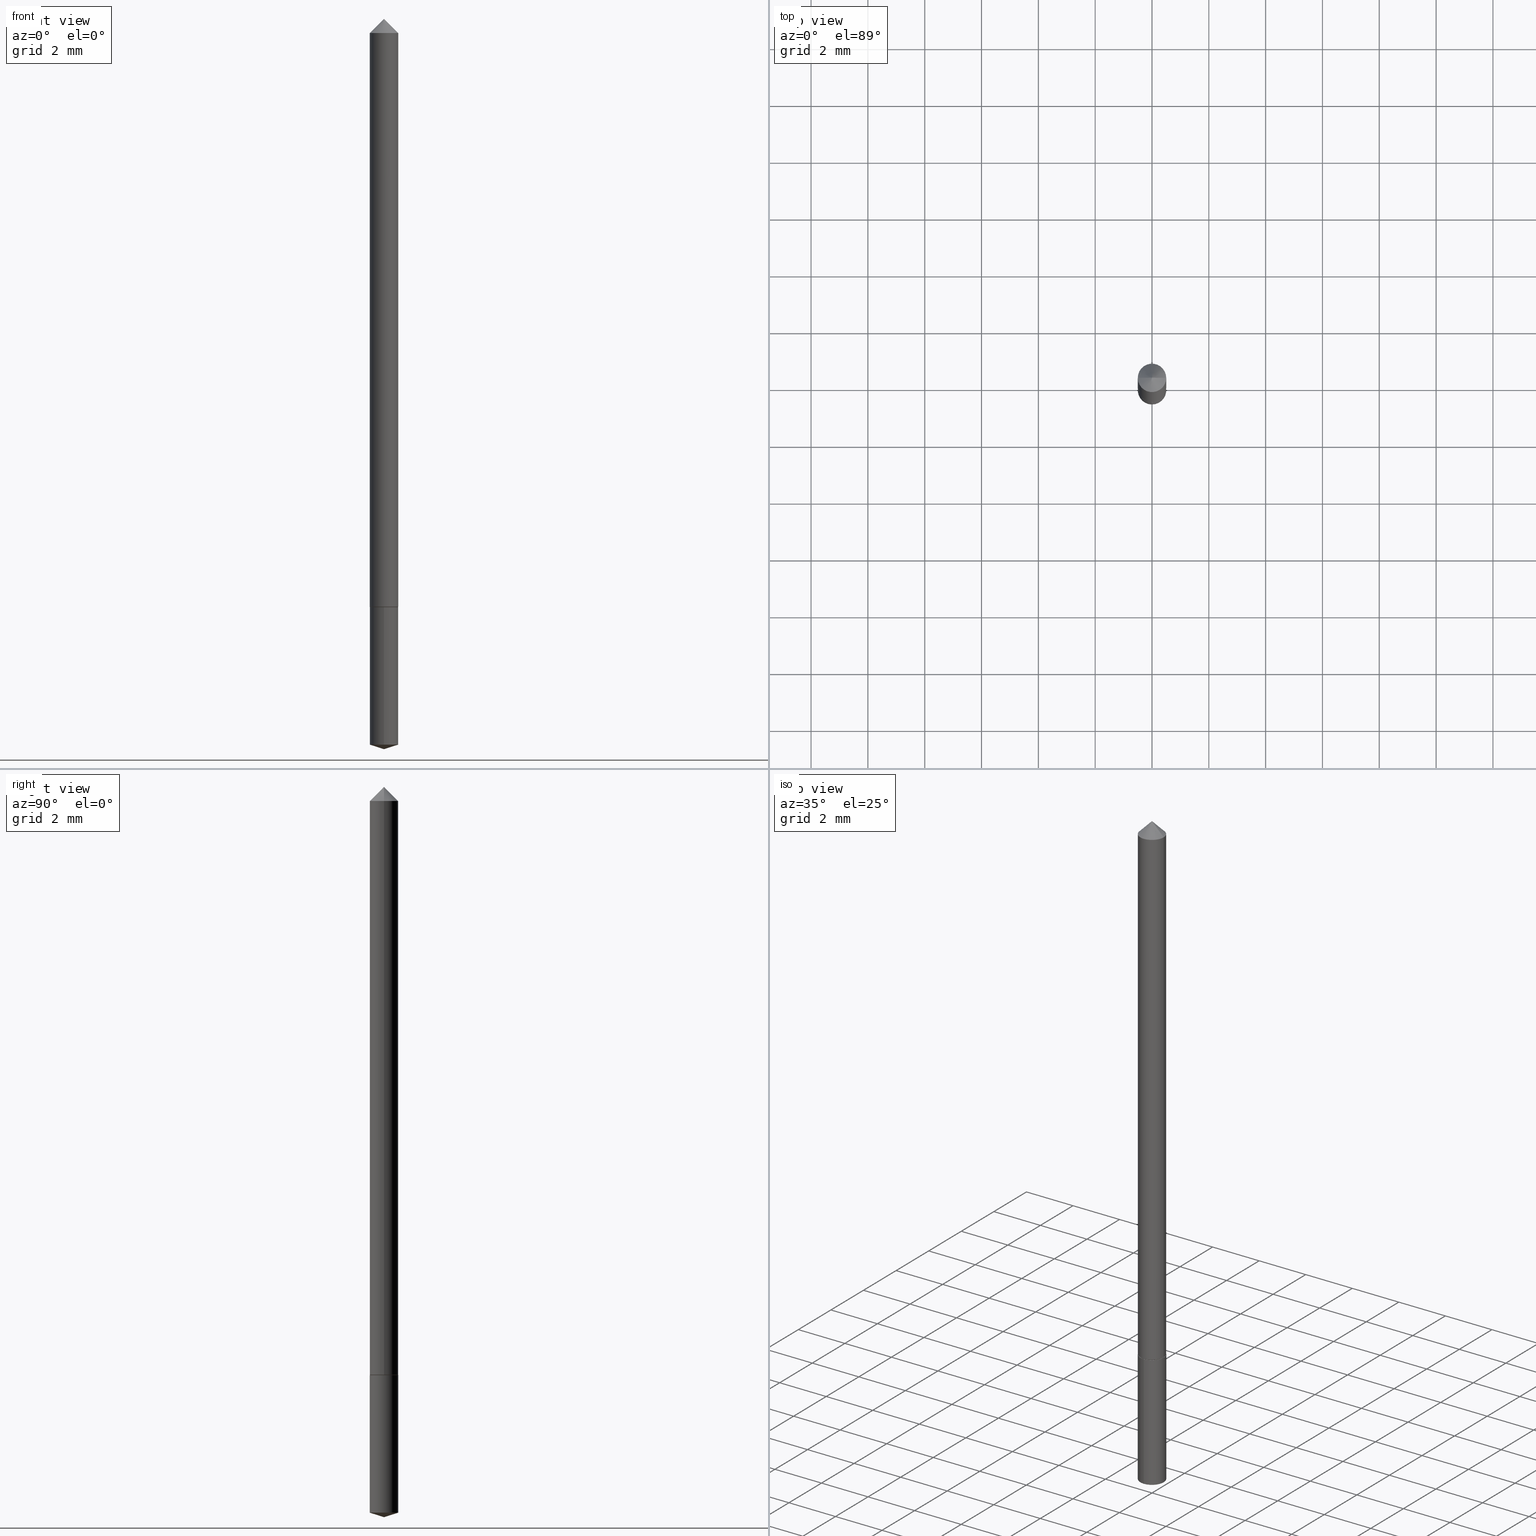
[diagram: canonical four-view strip — front | top / right | iso, engineering-drawing reading convention]
A machine part, canonical four-view strip (front | top / right | iso — engineering-drawing reading convention). The complete STEP part file that produces these views, byte-faithful:
ISO-10303-21;
HEADER;
FILE_DESCRIPTION (( 'STEP AP203' ),
    '1' );
FILE_NAME ('68653.STEP',
    '2024-04-23T13:24:25',
    ( '' ),
    ( '' ),
    'SwSTEP 2.0',
    'SolidWorks 2023',
    '' );
FILE_SCHEMA (( 'CONFIG_CONTROL_DESIGN' ));
ENDSEC;

DATA;
#1 = EDGE_LOOP ( 'NONE', ( #312, #205, #308 ) ) ;
#2 = DIRECTION ( 'NONE',  ( -2.445468806185136597E-29, 3.491481338843145583E-15, 1.000000000000000000 ) ) ;
#3 = EDGE_CURVE ( 'NONE', #20, #193, #161, .T. ) ;
#4 = CARTESIAN_POINT ( 'NONE',  ( 0.000000000000000000, 0.000000000000000000, 0.000000000000000000 ) ) ;
#5 = ADVANCED_FACE ( 'NONE', ( #355 ), #168, .T. ) ;
#6 = EDGE_CURVE ( 'NONE', #90, #110, #181, .T. ) ;
#7 = PRODUCT_DEFINITION_SHAPE ( 'NONE', 'NONE',  #191 ) ;
#8 = VERTEX_POINT ( 'NONE', #210 ) ;
#9 = CARTESIAN_POINT ( 'NONE',  ( 2.021913608953870993E-29, -2.886756770955512686E-15, -0.8268000000000000904 ) ) ;
#10 = APPROVAL_DATE_TIME ( #16, #204 ) ;
#11 = CIRCLE ( 'NONE', #219, 0.01969999999999999876 ) ;
#12 = DIRECTION ( 'NONE',  ( -2.445468806185136597E-29, 3.491481338843145583E-15, 1.000000000000000000 ) ) ;
#13 = PERSON_AND_ORGANIZATION_ROLE ( 'design_supplier' ) ;
#14 = APPROVAL ( #338, 'UNSPECIFIED' ) ;
#15 = LINE ( 'NONE', #128, #31 ) ;
#16 = DATE_AND_TIME ( #159, #269 ) ;
#17 = ORIENTED_EDGE ( 'NONE', *, *, #207, .T. ) ;
#18 = PLANE ( 'NONE',  #155 ) ;
#19 = LENGTH_MEASURE_WITH_UNIT ( LENGTH_MEASURE( 0.02539999999999999897 ), #213 );
#20 = VERTEX_POINT ( 'NONE', #323 ) ;
#21 = EDGE_LOOP ( 'NONE', ( #17, #146, #148, #251 ) ) ;
#22 = EDGE_LOOP ( 'NONE', ( #222, #152, #215, #316 ) ) ;
#23 = AXIS2_PLACEMENT_3D ( 'NONE', #261, #156, #285 ) ;
#24 = ORIENTED_EDGE ( 'NONE', *, *, #359, .T. ) ;
#25 = DIRECTION ( 'NONE',  ( -2.445468806185136597E-29, 3.491481338843145583E-15, 1.000000000000000000 ) ) ;
#26 = ADVANCED_FACE ( 'NONE', ( #125 ), #234, .F. ) ;
#27 = CARTESIAN_POINT ( 'NONE',  ( -0.01970000000000009938, -2.745034111341350691E-15, -0.8263000000000000345 ) ) ;
#28 = ORIENTED_EDGE ( 'NONE', *, *, #176, .T. ) ;
#29 = EDGE_CURVE ( 'NONE', #101, #8, #68, .T. ) ;
#30 = DIRECTION ( 'NONE',  ( 2.445468806185136597E-29, -3.491481338843145583E-15, -1.000000000000000000 ) ) ;
#31 = VECTOR ( 'NONE', #136, 39.37007874015748854 ) ;
#32 = ORIENTED_EDGE ( 'NONE', *, *, #226, .F. ) ;
#33 = DIRECTION ( 'NONE',  ( -2.445468806185136597E-29, 3.491481338843145583E-15, 1.000000000000000000 ) ) ;
#34 = APPROVAL_ROLE ( '' ) ;
#35 = ORIENTED_EDGE ( 'NONE', *, *, #79, .T. ) ;
#36 = CC_DESIGN_DATE_AND_TIME_ASSIGNMENT ( #303, #212, ( #114 ) ) ;
#37 = CIRCLE ( 'NONE', #243, 0.01920000000000009893 ) ;
#38 = LOCAL_TIME ( 9, 24, 25.00000000000000000, #362 ) ;
#39 = DIRECTION ( 'NONE',  ( -2.445468806185136597E-29, 3.491481338843145583E-15, 1.000000000000000000 ) ) ;
#40 = DIRECTION ( 'NONE',  ( -2.445361441338074995E-29, 3.491635091414965380E-15, 1.000000000000000000 ) ) ;
#41 = APPROVAL_STATUS ( 'not_yet_approved' ) ;
#42 = CARTESIAN_POINT ( 'NONE',  ( 2.021913608953870993E-29, -2.886756770955512686E-15, -0.8268000000000000904 ) ) ;
#43 = ORIENTED_EDGE ( 'NONE', *, *, #276, .F. ) ;
#44 = CONICAL_SURFACE ( 'NONE', #74, 0.01970000000000009938, 0.7853981633974141952 ) ;
#45 = SECURITY_CLASSIFICATION_LEVEL ( 'unclassified' ) ;
#46 = APPROVAL_ROLE ( '' ) ;
#47 = DIRECTION ( 'NONE',  ( -1.000000000000000000, 6.982962677686267499E-15, 0.000000000000000000 ) ) ;
#48 = DIRECTION ( 'NONE',  ( -2.445468806185136597E-29, 3.491481338843145583E-15, 1.000000000000000000 ) ) ;
#49 = LOCAL_TIME ( 9, 24, 25.00000000000000000, #71 ) ;
#50 = DIRECTION ( 'NONE',  ( 0.000000000000000000, 0.000000000000000000, 1.000000000000000000 ) ) ;
#51 = LINE ( 'NONE', #272, #257 ) ;
#52 = VERTEX_POINT ( 'NONE', #127 ) ;
#53 = CC_DESIGN_PERSON_AND_ORGANIZATION_ASSIGNMENT ( #81, #307, ( #191 ) ) ;
#54 = ORIENTED_EDGE ( 'NONE', *, *, #279, .F. ) ;
#55 = AXIS2_PLACEMENT_3D ( 'NONE', #4, #33, #65 ) ;
#56 = ORIENTED_EDGE ( 'NONE', *, *, #29, .F. ) ;
#57 = CC_DESIGN_PERSON_AND_ORGANIZATION_ASSIGNMENT ( #73, #100, ( #114 ) ) ;
#58 = DESIGN_CONTEXT ( 'detailed design', #314, 'design' ) ;
#59 = ORIENTED_EDGE ( 'NONE', *, *, #6, .F. ) ;
#60 = ORIENTED_EDGE ( 'NONE', *, *, #79, .F. ) ;
#61 = CARTESIAN_POINT ( 'NONE',  ( 0.000000000000000000, 0.000000000000000000, 0.000000000000000000 ) ) ;
#62 = AXIS2_PLACEMENT_3D ( 'NONE', #77, #119, #232 ) ;
#63 = ORIENTED_EDGE ( 'NONE', *, *, #276, .T. ) ;
#64 = DIRECTION ( 'NONE',  ( -6.982962677686265922E-15, -1.000000000000000000, 3.500519750498706404E-15 ) ) ;
#65 = DIRECTION ( 'NONE',  ( 1.000000000000000000, -6.982962677686266711E-15, 4.876176775795936353E-29 ) ) ;
#66 = ORIENTED_EDGE ( 'NONE', *, *, #162, .F. ) ;
#67 = PERSON_AND_ORGANIZATION ( #326, #121 ) ;
#68 = LINE ( 'NONE', #293, #263 ) ;
#69 = PRODUCT_DEFINITION_FORMATION_WITH_SPECIFIED_SOURCE ( 'ANY', '', #91, .NOT_KNOWN. ) ;
#70 = DIRECTION ( 'NONE',  ( 1.000000000000000000, -6.982962677686268288E-15, 0.000000000000000000 ) ) ;
#71 = COORDINATED_UNIVERSAL_TIME_OFFSET ( 5, 0, .BEHIND. ) ;
#72 = DIRECTION ( 'NONE',  ( -2.438088387897960049E-29, 3.491481338843145188E-15, 1.000000000000000000 ) ) ;
#73 = PERSON_AND_ORGANIZATION ( #326, #121 ) ;
#74 = AXIS2_PLACEMENT_3D ( 'NONE', #163, #39, #70 ) ;
#75 = APPLICATION_PROTOCOL_DEFINITION ( 'international standard', 'config_control_design', 1994, #122 ) ;
#76 = APPROVAL_ROLE ( '' ) ;
#77 = CARTESIAN_POINT ( 'NONE',  ( 7.642090019328601786E-31, -1.091087918388490144E-16, -0.03125000000000020123 ) ) ;
#78 = DIRECTION ( 'NONE',  ( -0.7071067811865452413, 2.468850131082233000E-15, -0.7071067811865497932 ) ) ;
#79 = EDGE_CURVE ( 'NONE', #8, #336, #11, .T. ) ;
#80 = CALENDAR_DATE ( 2024, 23, 4 ) ;
#81 = PERSON_AND_ORGANIZATION ( #326, #121 ) ;
#82 = ORIENTED_EDGE ( 'NONE', *, *, #361, .F. ) ;
#83 = VERTEX_POINT ( 'NONE', #89 ) ;
#84 = CLOSED_SHELL ( 'NONE', ( #298, #115, #98, #26, #223, #150, #147 ) ) ;
#85 =( GEOMETRIC_REPRESENTATION_CONTEXT ( 3 ) GLOBAL_UNCERTAINTY_ASSIGNED_CONTEXT ( ( #337 ) ) GLOBAL_UNIT_ASSIGNED_CONTEXT ( ( #104, #202, #248 ) ) REPRESENTATION_CONTEXT ( 'NONE', 'WORKASPACE' ) );
#86 = DIRECTION ( 'NONE',  ( -6.982962677686265133E-15, -1.000000000000000000, 6.933624349401683764E-15 ) ) ;
#87 = EDGE_LOOP ( 'NONE', ( #24, #358, #60, #56 ) ) ;
#88 = FACE_OUTER_BOUND ( 'NONE', #21, .T. ) ;
#89 = CARTESIAN_POINT ( 'NONE',  ( -0.01970000000000000223, -1.357082992117728466E-15, -0.03125000000000020123 ) ) ;
#90 = VERTEX_POINT ( 'NONE', #286 ) ;
#91 = PRODUCT ( '68653', '68653', '', ( #218 ) ) ;
#92 = CIRCLE ( 'NONE', #174, 0.01970000000000009938 ) ;
#93 = APPROVAL_PERSON_ORGANIZATION ( #67, #14, #34 ) ;
#94 = DIRECTION ( 'NONE',  ( -2.445468806185136597E-29, 3.491481338843145583E-15, 1.000000000000000000 ) ) ;
#95 = CARTESIAN_POINT ( 'NONE',  ( -0.01970000000000000223, 2.845557291157046503E-17, -0.03125000000000020123 ) ) ;
#96 = DIRECTION ( 'NONE',  ( -2.445361441338074995E-29, 3.491635091414965380E-15, 1.000000000000000000 ) ) ;
#97 = APPROVAL_DATE_TIME ( #129, #249 ) ;
#98 = ADVANCED_FACE ( 'NONE', ( #195 ), #142, .T. ) ;
#99 = CARTESIAN_POINT ( 'NONE',  ( 2.487971656442946993E-29, -3.552222663130027981E-15, -1.017388613859084190 ) ) ;
#100 = PERSON_AND_ORGANIZATION_ROLE ( 'classification_officer' ) ;
#101 = VERTEX_POINT ( 'NONE', #256 ) ;
#102 = CIRCLE ( 'NONE', #62, 0.01970000000000000223 ) ;
#103 = ADVANCED_BREP_SHAPE_REPRESENTATION ( '68653', ( #341, #220, #345 ), #85 ) ;
#104 =( CONVERSION_BASED_UNIT ( 'INCH', #19 ) LENGTH_UNIT ( ) NAMED_UNIT ( #319 ) );
#105 = DIRECTION ( 'NONE',  ( -2.445468806185136877E-29, 3.491481338843145188E-15, 1.000000000000000000 ) ) ;
#106 = FACE_OUTER_BOUND ( 'NONE', #283, .T. ) ;
#107 = DIRECTION ( 'NONE',  ( -6.982962677686265133E-15, -1.000000000000000000, 6.933624349401683764E-15 ) ) ;
#108 = CARTESIAN_POINT ( 'NONE',  ( 2.020690874550778472E-29, -2.885011030286090788E-15, -0.8263000000000000345 ) ) ;
#109 = AXIS2_PLACEMENT_3D ( 'NONE', #240, #167, #247 ) ;
#110 = VERTEX_POINT ( 'NONE', #227 ) ;
#111 = CARTESIAN_POINT ( 'NONE',  ( 1.399769189447645769E-16, 0.01969999999999711218, -0.8268000000000002014 ) ) ;
#112 = ORIENTED_EDGE ( 'NONE', *, *, #3, .F. ) ;
#113 = DIRECTION ( 'NONE',  ( 1.000000000000000000, -6.982962677686266711E-15, 4.876176775795936353E-29 ) ) ;
#114 = SECURITY_CLASSIFICATION ( '', '', #45 ) ;
#115 = ADVANCED_FACE ( 'NONE', ( #88 ), #199, .T. ) ;
#116 = ORIENTED_EDGE ( 'NONE', *, *, #288, .F. ) ;
#117 = EDGE_CURVE ( 'NONE', #52, #83, #102, .T. ) ;
#118 = CYLINDRICAL_SURFACE ( 'NONE', #55, 0.01970000000000004733 ) ;
#119 = DIRECTION ( 'NONE',  ( -2.445468806185136597E-29, 3.491481338843145583E-15, 1.000000000000000000 ) ) ;
#120 = ADVANCED_FACE ( 'NONE', ( #346 ), #268, .T. ) ;
#121 = ORGANIZATION ( 'UNSPECIFIED', 'UNSPECIFIED', '' ) ;
#122 = APPLICATION_CONTEXT ( 'configuration controlled 3d designs of mechanical parts and assemblies' ) ;
#123 = ORIENTED_EDGE ( 'NONE', *, *, #207, .F. ) ;
#124 = EDGE_CURVE ( 'NONE', #83, #52, #158, .T. ) ;
#125 = FACE_OUTER_BOUND ( 'NONE', #255, .T. ) ;
#126 = DIRECTION ( 'NONE',  ( 1.000000000000000000, -6.982962677686265922E-15, 0.000000000000000000 ) ) ;
#127 = CARTESIAN_POINT ( 'NONE',  ( 0.01970000000000000223, -2.466731565892684629E-16, -0.03125000000000020123 ) ) ;
#128 = CARTESIAN_POINT ( 'NONE',  ( 0.01970000000000009938, -3.022575395036511186E-15, -0.8263000000000000345 ) ) ;
#129 = DATE_AND_TIME ( #244, #49 ) ;
#130 = AXIS2_PLACEMENT_3D ( 'NONE', #42, #275, #186 ) ;
#131 = COORDINATED_UNIVERSAL_TIME_OFFSET ( 5, 0, .BEHIND. ) ;
#132 = CALENDAR_DATE ( 2024, 23, 4 ) ;
#133 = DATE_TIME_ROLE ( 'creation_date' ) ;
#134 = FACE_OUTER_BOUND ( 'NONE', #1, .T. ) ;
#135 = CARTESIAN_POINT ( 'NONE',  ( 0.000000000000000000, 0.000000000000000000, 0.000000000000000000 ) ) ;
#136 = DIRECTION ( 'NONE',  ( 0.7071067811865232589, -2.468850131082003836E-15, 0.7071067811865715536 ) ) ;
#137 = CARTESIAN_POINT ( 'NONE',  ( 0.01970000000000009938, -3.022575395036511186E-15, -0.8263000000000000345 ) ) ;
#138 = CLOSED_SHELL ( 'NONE', ( #347, #120, #165, #5, #352 ) ) ;
#139 = CARTESIAN_POINT ( 'NONE',  ( 2.021913608953870993E-29, -2.886756770955512686E-15, -0.8268000000000000904 ) ) ;
#140 = CARTESIAN_POINT ( 'NONE',  ( -0.01970000000000009938, -2.745034111341350691E-15, -0.8263000000000000345 ) ) ;
#141 = AXIS2_PLACEMENT_3D ( 'NONE', #203, #30, #200 ) ;
#142 = CONICAL_SURFACE ( 'NONE', #154, 0.01970000000000009938, 0.7853981633974141952 ) ;
#143 = APPROVAL_PERSON_ORGANIZATION ( #209, #204, #46 ) ;
#144 = ORIENTED_EDGE ( 'NONE', *, *, #124, .T. ) ;
#145 = DIRECTION ( 'NONE',  ( -6.982962677686265133E-15, -1.000000000000000000, 6.933624349401683764E-15 ) ) ;
#146 = ORIENTED_EDGE ( 'NONE', *, *, #291, .T. ) ;
#147 = ADVANCED_FACE ( 'NONE', ( #179 ), #230, .T. ) ;
#148 = ORIENTED_EDGE ( 'NONE', *, *, #117, .F. ) ;
#149 = VECTOR ( 'NONE', #78, 39.37007874015748143 ) ;
#150 = ADVANCED_FACE ( 'NONE', ( #289 ), #118, .T. ) ;
#151 = COORDINATED_UNIVERSAL_TIME_OFFSET ( 5, 0, .BEHIND. ) ;
#152 = ORIENTED_EDGE ( 'NONE', *, *, #348, .T. ) ;
#153 = CARTESIAN_POINT ( 'NONE',  ( -9.377091175301580540E-28, 1.338920379239581730E-13, 38.34647874015747959 ) ) ;
#154 = AXIS2_PLACEMENT_3D ( 'NONE', #360, #25, #201 ) ;
#155 = AXIS2_PLACEMENT_3D ( 'NONE', #139, #329, #187 ) ;
#156 = DIRECTION ( 'NONE',  ( -2.445468806185136597E-29, 3.491481338843145583E-15, 1.000000000000000000 ) ) ;
#157 = DIRECTION ( 'NONE',  ( -2.445361441338074995E-29, 3.491635091414965774E-15, 1.000000000000000000 ) ) ;
#158 = CIRCLE ( 'NONE', #23, 0.01970000000000000223 ) ;
#159 = CALENDAR_DATE ( 2024, 23, 4 ) ;
#160 = DIRECTION ( 'NONE',  ( -2.445361441338074995E-29, 3.491635091414965380E-15, 1.000000000000000000 ) ) ;
#161 = LINE ( 'NONE', #140, #331 ) ;
#162 = EDGE_CURVE ( 'NONE', #20, #233, #180, .T. ) ;
#163 = CARTESIAN_POINT ( 'NONE',  ( 2.020690874550778472E-29, -2.885011030286090788E-15, -0.8263000000000000345 ) ) ;
#164 = COORDINATED_UNIVERSAL_TIME_OFFSET ( 5, 0, .BEHIND. ) ;
#165 = ADVANCED_FACE ( 'NONE', ( #235 ), #325, .T. ) ;
#166 = DIRECTION ( 'NONE',  ( 1.000000000000000000, -6.982962677686268288E-15, 0.000000000000000000 ) ) ;
#167 = DIRECTION ( 'NONE',  ( -2.445361441338074995E-29, 3.491635091414965380E-15, 1.000000000000000000 ) ) ;
#168 = CYLINDRICAL_SURFACE ( 'NONE', #189, 0.01969999999999999876 ) ;
#169 = CONICAL_SURFACE ( 'NONE', #237, 0.01970000000000000223, 0.7853981633974450594 ) ;
#170 = CC_DESIGN_APPROVAL ( #204, ( #114 ) ) ;
#171 = ORIENTED_EDGE ( 'NONE', *, *, #162, .T. ) ;
#172 = EDGE_LOOP ( 'NONE', ( #54, #196, #144 ) ) ;
#173 = EDGE_LOOP ( 'NONE', ( #59, #197, #184 ) ) ;
#174 = AXIS2_PLACEMENT_3D ( 'NONE', #108, #12, #239 ) ;
#175 = VERTEX_POINT ( 'NONE', #137 ) ;
#176 = EDGE_CURVE ( 'NONE', #110, #101, #353, .T. ) ;
#177 = DIRECTION ( 'NONE',  ( -2.445468806185136597E-29, 3.491481338843145583E-15, 1.000000000000000000 ) ) ;
#178 = CARTESIAN_POINT ( 'NONE',  ( 2.021913608953870993E-29, -2.886756770955512686E-15, -0.8268000000000000904 ) ) ;
#179 = FACE_OUTER_BOUND ( 'NONE', #172, .T. ) ;
#180 = CIRCLE ( 'NONE', #297, 0.01920000000000009893 ) ;
#181 = LINE ( 'NONE', #295, #339 ) ;
#182 = FACE_OUTER_BOUND ( 'NONE', #364, .T. ) ;
#183 = PERSON_AND_ORGANIZATION ( #326, #121 ) ;
#184 = ORIENTED_EDGE ( 'NONE', *, *, #176, .F. ) ;
#185 = DIRECTION ( 'NONE',  ( 6.776566513254256560E-15, 0.9537169507482287090, 0.3007057995042674015 ) ) ;
#186 = DIRECTION ( 'NONE',  ( -6.982962677686265133E-15, -1.000000000000000000, 6.933624349401683764E-15 ) ) ;
#187 = DIRECTION ( 'NONE',  ( 6.982962677686265922E-15, 1.000000000000000000, -3.491635091414965774E-15 ) ) ;
#188 = EDGE_LOOP ( 'NONE', ( #116, #259, #224 ) ) ;
#189 = AXIS2_PLACEMENT_3D ( 'NONE', #217, #278, #351 ) ;
#190 = AXIS2_PLACEMENT_3D ( 'NONE', #354, #48, #166 ) ;
#191 = PRODUCT_DEFINITION ( 'UNKNOWN', '', #69, #58 ) ;
#192 = LINE ( 'NONE', #313, #350 ) ;
#193 = VERTEX_POINT ( 'NONE', #27 ) ;
#194 = LINE ( 'NONE', #206, #292 ) ;
#195 = FACE_OUTER_BOUND ( 'NONE', #229, .T. ) ;
#196 = ORIENTED_EDGE ( 'NONE', *, *, #231, .T. ) ;
#197 = ORIENTED_EDGE ( 'NONE', *, *, #288, .T. ) ;
#198 = CC_DESIGN_DATE_AND_TIME_ASSIGNMENT ( #228, #133, ( #191 ) ) ;
#199 = CYLINDRICAL_SURFACE ( 'NONE', #281, 0.01970000000000004733 ) ;
#200 = DIRECTION ( 'NONE',  ( -1.000000000000000000, 6.982962677686267499E-15, 0.000000000000000000 ) ) ;
#201 = DIRECTION ( 'NONE',  ( 1.000000000000000000, -6.982962677686268288E-15, 0.000000000000000000 ) ) ;
#202 =( NAMED_UNIT ( * ) PLANE_ANGLE_UNIT ( ) SI_UNIT ( $, .RADIAN. ) );
#203 = CARTESIAN_POINT ( 'NONE',  ( 7.642090019328601786E-31, -1.091087918388490144E-16, -0.03125000000000020123 ) ) ;
#204 = APPROVAL ( #41, 'UNSPECIFIED' ) ;
#205 = ORIENTED_EDGE ( 'NONE', *, *, #279, .T. ) ;
#206 = CARTESIAN_POINT ( 'NONE',  ( 2.503071971353653735E-29, -3.574037679572358913E-15, -1.023600000000000065 ) ) ;
#207 = EDGE_CURVE ( 'NONE', #175, #193, #92, .T. ) ;
#208 = LOCAL_TIME ( 9, 24, 25.00000000000000000, #151 ) ;
#209 = PERSON_AND_ORGANIZATION ( #326, #121 ) ;
#210 = CARTESIAN_POINT ( 'NONE',  ( -1.375643647503991970E-16, -0.01970000000000288187, -0.8267999999999998684 ) ) ;
#211 = LOCAL_TIME ( 9, 24, 25.00000000000000000, #164 ) ;
#212 = DATE_TIME_ROLE ( 'classification_date' ) ;
#213 =( LENGTH_UNIT ( ) NAMED_UNIT ( * ) SI_UNIT ( $, .METRE. ) );
#214 = DIRECTION ( 'NONE',  ( 2.445468806185136597E-29, -3.491481338843145583E-15, -1.000000000000000000 ) ) ;
#215 = ORIENTED_EDGE ( 'NONE', *, *, #328, .T. ) ;
#216 = LINE ( 'NONE', #95, #149 ) ;
#217 = CARTESIAN_POINT ( 'NONE',  ( 2.021913608953870993E-29, -2.886756770955512686E-15, -0.8268000000000000904 ) ) ;
#218 = MECHANICAL_CONTEXT ( 'NONE', #122, 'mechanical' ) ;
#219 = AXIS2_PLACEMENT_3D ( 'NONE', #9, #342, #86 ) ;
#220 = MANIFOLD_SOLID_BREP ( 'Body-Move/Copy2[2]', #84 ) ;
#221 = ORIENTED_EDGE ( 'NONE', *, *, #265, .F. ) ;
#222 = ORIENTED_EDGE ( 'NONE', *, *, #291, .F. ) ;
#223 = ADVANCED_FACE ( 'NONE', ( #182 ), #44, .T. ) ;
#224 = ORIENTED_EDGE ( 'NONE', *, *, #359, .F. ) ;
#225 = AXIS2_PLACEMENT_3D ( 'NONE', #99, #40, #145 ) ;
#226 = EDGE_CURVE ( 'NONE', #233, #175, #15, .T. ) ;
#227 = CARTESIAN_POINT ( 'NONE',  ( 1.399769189447645276E-16, 0.01969999999999644258, -1.017388613859084412 ) ) ;
#228 = DATE_AND_TIME ( #132, #38 ) ;
#229 = EDGE_LOOP ( 'NONE', ( #63, #340, #123, #32 ) ) ;
#230 = CONICAL_SURFACE ( 'NONE', #141, 0.01970000000000000223, 0.7853981633974450594 ) ;
#231 = EDGE_CURVE ( 'NONE', #287, #83, #216, .T. ) ;
#232 = DIRECTION ( 'NONE',  ( 1.000000000000000000, -6.982962677686267499E-15, 0.000000000000000000 ) ) ;
#233 = VERTEX_POINT ( 'NONE', #320 ) ;
#234 = PLANE ( 'NONE',  #315 ) ;
#235 = FACE_OUTER_BOUND ( 'NONE', #173, .T. ) ;
#236 = PERSON_AND_ORGANIZATION_ROLE ( 'creator' ) ;
#237 = AXIS2_PLACEMENT_3D ( 'NONE', #304, #214, #47 ) ;
#238 = SHAPE_DEFINITION_REPRESENTATION ( #7, #103 ) ;
#239 = DIRECTION ( 'NONE',  ( 1.000000000000000000, -6.982962677686268288E-15, 0.000000000000000000 ) ) ;
#240 = CARTESIAN_POINT ( 'NONE',  ( 2.021913608953870993E-29, -2.886756770955512686E-15, -0.8268000000000000904 ) ) ;
#241 = APPLICATION_PROTOCOL_DEFINITION ( 'international standard', 'config_control_design', 1994, #314 ) ;
#242 = CC_DESIGN_PERSON_AND_ORGANIZATION_ASSIGNMENT ( #183, #13, ( #69 ) ) ;
#243 = AXIS2_PLACEMENT_3D ( 'NONE', #254, #94, #322 ) ;
#244 = CALENDAR_DATE ( 2024, 23, 4 ) ;
#245 = CARTESIAN_POINT ( 'NONE',  ( 2.487971656442946993E-29, -3.552222663130027981E-15, -1.017388613859084190 ) ) ;
#246 = ORIENTED_EDGE ( 'NONE', *, *, #361, .T. ) ;
#247 = DIRECTION ( 'NONE',  ( -6.982962677686265133E-15, -1.000000000000000000, 6.933624349401683764E-15 ) ) ;
#248 =( NAMED_UNIT ( * ) SI_UNIT ( $, .STERADIAN. ) SOLID_ANGLE_UNIT ( ) );
#249 = APPROVAL ( #294, 'UNSPECIFIED' ) ;
#250 = CARTESIAN_POINT ( 'NONE',  ( 0.01970000000000004733, -1.375643647504197814E-16, 9.606068248318017740E-31 ) ) ;
#251 = ORIENTED_EDGE ( 'NONE', *, *, #328, .F. ) ;
#252 = AXIS2_PLACEMENT_3D ( 'NONE', #153, #343, #64 ) ;
#253 = CIRCLE ( 'NONE', #277, 0.01969999999999999876 ) ;
#254 = CARTESIAN_POINT ( 'NONE',  ( 2.021913608953870993E-29, -2.886756770955512686E-15, -0.8268000000000000904 ) ) ;
#255 = EDGE_LOOP ( 'NONE', ( #43, #66 ) ) ;
#256 = CARTESIAN_POINT ( 'NONE',  ( -1.375643647503945132E-16, -0.01970000000000354454, -1.017388613859084190 ) ) ;
#257 = VECTOR ( 'NONE', #105, 39.37007874015748143 ) ;
#258 = CC_DESIGN_APPROVAL ( #249, ( #69 ) ) ;
#259 = ORIENTED_EDGE ( 'NONE', *, *, #6, .T. ) ;
#260 = CARTESIAN_POINT ( 'NONE',  ( 2.824516471143851437E-31, -4.032660946363858749E-17, -0.01155000000000007410 ) ) ;
#261 = CARTESIAN_POINT ( 'NONE',  ( 7.642090019328601786E-31, -1.091087918388490144E-16, -0.03125000000000020123 ) ) ;
#262 = EDGE_LOOP ( 'NONE', ( #221, #28, #357, #82 ) ) ;
#263 = VECTOR ( 'NONE', #264, 39.37007874015748143 ) ;
#264 = DIRECTION ( 'NONE',  ( -2.445361441338074995E-29, 3.491635091414965774E-15, 1.000000000000000000 ) ) ;
#265 = EDGE_CURVE ( 'NONE', #110, #336, #266, .T. ) ;
#266 = LINE ( 'NONE', #349, #344 ) ;
#267 = CARTESIAN_POINT ( 'NONE',  ( 2.021913608953870993E-29, -2.886756770955512686E-15, -0.8268000000000000904 ) ) ;
#268 = CONICAL_SURFACE ( 'NONE', #252, 124.8659371009149908, 1.265363707695891460 ) ;
#269 = LOCAL_TIME ( 9, 24, 25.00000000000000000, #131 ) ;
#270 = CARTESIAN_POINT ( 'NONE',  ( -9.377091175301580540E-28, 1.338920379239581730E-13, 38.34647874015747959 ) ) ;
#271 = PERSON_AND_ORGANIZATION ( #326, #121 ) ;
#272 = CARTESIAN_POINT ( 'NONE',  ( -0.01970000000000004733, 1.399769189447400729E-16, -9.690302127802188776E-31 ) ) ;
#273 = DIRECTION ( 'NONE',  ( -0.7071067811865232589, 7.493145998870265808E-15, 0.7071067811865715536 ) ) ;
#274 = CC_DESIGN_PERSON_AND_ORGANIZATION_ASSIGNMENT ( #324, #300, ( #91 ) ) ;
#275 = DIRECTION ( 'NONE',  ( -2.445361441338074995E-29, 3.491635091414965380E-15, 1.000000000000000000 ) ) ;
#276 = EDGE_CURVE ( 'NONE', #233, #20, #37, .T. ) ;
#277 = AXIS2_PLACEMENT_3D ( 'NONE', #245, #160, #107 ) ;
#278 = DIRECTION ( 'NONE',  ( -2.445361441338074995E-29, 3.491635091414965380E-15, 1.000000000000000000 ) ) ;
#279 = EDGE_CURVE ( 'NONE', #287, #52, #192, .T. ) ;
#280 = ORIENTED_EDGE ( 'NONE', *, *, #348, .F. ) ;
#281 = AXIS2_PLACEMENT_3D ( 'NONE', #61, #177, #113 ) ;
#282 = DIRECTION ( 'NONE',  ( -2.445468806185136877E-29, 3.491481338843145188E-15, 1.000000000000000000 ) ) ;
#283 = EDGE_LOOP ( 'NONE', ( #35, #246 ) ) ;
#284 = PRODUCT_RELATED_PRODUCT_CATEGORY ( 'detail', '', ( #91 ) ) ;
#285 = DIRECTION ( 'NONE',  ( 1.000000000000000000, -6.982962677686267499E-15, 0.000000000000000000 ) ) ;
#286 = CARTESIAN_POINT ( 'NONE',  ( 2.503071971353654015E-29, -3.574037679572358913E-15, -1.023600000000000065 ) ) ;
#287 = VERTEX_POINT ( 'NONE', #260 ) ;
#288 = EDGE_CURVE ( 'NONE', #90, #101, #194, .T. ) ;
#289 = FACE_OUTER_BOUND ( 'NONE', #22, .T. ) ;
#290 = CIRCLE ( 'NONE', #190, 0.01970000000000009938 ) ;
#291 = EDGE_CURVE ( 'NONE', #193, #83, #51, .T. ) ;
#292 = VECTOR ( 'NONE', #321, 39.37007874015748854 ) ;
#293 = CARTESIAN_POINT ( 'NONE',  ( -1.375643647503991970E-16, -0.01970000000000288187, -0.8267999999999998684 ) ) ;
#294 = APPROVAL_STATUS ( 'not_yet_approved' ) ;
#295 = CARTESIAN_POINT ( 'NONE',  ( 2.503251066667929686E-29, -3.573783434319597644E-15, -1.023600000000000065 ) ) ;
#296 = PERSON_AND_ORGANIZATION ( #326, #121 ) ;
#297 = AXIS2_PLACEMENT_3D ( 'NONE', #178, #2, #126 ) ;
#298 = ADVANCED_FACE ( 'NONE', ( #134 ), #169, .T. ) ;
#299 = CALENDAR_DATE ( 2024, 23, 4 ) ;
#300 = PERSON_AND_ORGANIZATION_ROLE ( 'design_owner' ) ;
#301 = CYLINDRICAL_SURFACE ( 'NONE', #130, 0.01969999999999999876 ) ;
#302 = DIRECTION ( 'NONE',  ( -6.982962677686265922E-15, -1.000000000000000000, 3.500519750498706404E-15 ) ) ;
#303 = DATE_AND_TIME ( #299, #211 ) ;
#304 = CARTESIAN_POINT ( 'NONE',  ( 7.642090019328601786E-31, -1.091087918388490144E-16, -0.03125000000000020123 ) ) ;
#305 = ORIENTED_EDGE ( 'NONE', *, *, #226, .T. ) ;
#306 = AXIS2_PLACEMENT_3D ( 'NONE', #270, #96, #302 ) ;
#307 = PERSON_AND_ORGANIZATION_ROLE ( 'creator' ) ;
#308 = ORIENTED_EDGE ( 'NONE', *, *, #117, .T. ) ;
#309 = CC_DESIGN_APPROVAL ( #14, ( #191 ) ) ;
#310 = DIRECTION ( 'NONE',  ( 0.7071067811865452413, -7.319954787623248157E-15, -0.7071067811865497932 ) ) ;
#311 = APPROVAL_DATE_TIME ( #330, #14 ) ;
#312 = ORIENTED_EDGE ( 'NONE', *, *, #231, .F. ) ;
#313 = CARTESIAN_POINT ( 'NONE',  ( 0.01970000000000000223, -2.442606023949481714E-16, -0.03125000000000020123 ) ) ;
#314 = APPLICATION_CONTEXT ( 'configuration controlled 3d designs of mechanical parts and assemblies' ) ;
#315 = AXIS2_PLACEMENT_3D ( 'NONE', #267, #72, #317 ) ;
#316 = ORIENTED_EDGE ( 'NONE', *, *, #124, .F. ) ;
#317 = DIRECTION ( 'NONE',  ( 1.000000000000000000, -6.982962677686265922E-15, 4.876176775795935793E-29 ) ) ;
#318 = VECTOR ( 'NONE', #282, 39.37007874015748143 ) ;
#319 = DIMENSIONAL_EXPONENTS ( 1.000000000000000000, 0.000000000000000000, 0.000000000000000000, 0.000000000000000000, 0.000000000000000000, 0.000000000000000000, 0.000000000000000000 ) ;
#320 = CARTESIAN_POINT ( 'NONE',  ( 0.01920000000000009893, -3.020829654367089682E-15, -0.8268000000000000904 ) ) ;
#321 = DIRECTION ( 'NONE',  ( -6.659769872151631300E-15, -0.9537169507482265995, 0.3007057995042740073 ) ) ;
#322 = DIRECTION ( 'NONE',  ( 1.000000000000000000, -6.982962677686265922E-15, 0.000000000000000000 ) ) ;
#323 = CARTESIAN_POINT ( 'NONE',  ( -0.01920000000000009893, -2.747683338515461892E-15, -0.8268000000000000904 ) ) ;
#324 = PERSON_AND_ORGANIZATION ( #326, #121 ) ;
#325 = CONICAL_SURFACE ( 'NONE', #306, 124.8659371009149908, 1.265363707695891460 ) ;
#326 = PERSON ( 'UNSPECIFIED', 'UNSPECIFIED', 'UNSPECIFIED', ('UNSPECIFIED'), ('UNSPECIFIED'), ('UNSPECIFIED') ) ;
#327 = LINE ( 'NONE', #250, #318 ) ;
#328 = EDGE_CURVE ( 'NONE', #175, #52, #327, .T. ) ;
#329 = DIRECTION ( 'NONE',  ( 2.445361441338074434E-29, -3.491635091414965774E-15, -1.000000000000000000 ) ) ;
#330 = DATE_AND_TIME ( #80, #208 ) ;
#331 = VECTOR ( 'NONE', #273, 39.37007874015748854 ) ;
#332 = APPROVAL_PERSON_ORGANIZATION ( #271, #249, #76 ) ;
#333 = DIRECTION ( 'NONE',  ( 1.000000000000000000, 0.000000000000000000, 0.000000000000000000 ) ) ;
#334 = FACE_OUTER_BOUND ( 'NONE', #87, .T. ) ;
#335 = CC_DESIGN_PERSON_AND_ORGANIZATION_ASSIGNMENT ( #296, #236, ( #69 ) ) ;
#336 = VERTEX_POINT ( 'NONE', #111 ) ;
#337 = UNCERTAINTY_MEASURE_WITH_UNIT (LENGTH_MEASURE( 1.000000000000000082E-05 ), #104, 'distance_accuracy_value', 'NONE');
#338 = APPROVAL_STATUS ( 'not_yet_approved' ) ;
#339 = VECTOR ( 'NONE', #185, 39.37007874015748143 ) ;
#340 = ORIENTED_EDGE ( 'NONE', *, *, #3, .T. ) ;
#341 = MANIFOLD_SOLID_BREP ( 'Body-Move/Copy2[1]', #138 ) ;
#342 = DIRECTION ( 'NONE',  ( -2.445361441338074995E-29, 3.491635091414965380E-15, 1.000000000000000000 ) ) ;
#343 = DIRECTION ( 'NONE',  ( -2.445361441338074995E-29, 3.491635091414965380E-15, 1.000000000000000000 ) ) ;
#344 = VECTOR ( 'NONE', #157, 39.37007874015748143 ) ;
#345 = AXIS2_PLACEMENT_3D ( 'NONE', #135, #50, #333 ) ;
#346 = FACE_OUTER_BOUND ( 'NONE', #188, .T. ) ;
#347 = ADVANCED_FACE ( 'NONE', ( #334 ), #301, .T. ) ;
#348 = EDGE_CURVE ( 'NONE', #193, #175, #290, .T. ) ;
#349 = CARTESIAN_POINT ( 'NONE',  ( 1.399769189447599177E-16, 0.01969999999999711218, -0.8268000000000002014 ) ) ;
#350 = VECTOR ( 'NONE', #310, 39.37007874015748143 ) ;
#351 = DIRECTION ( 'NONE',  ( -6.982962677686265133E-15, -1.000000000000000000, 6.933624349401683764E-15 ) ) ;
#352 = ADVANCED_FACE ( 'NONE', ( #106 ), #18, .F. ) ;
#353 = CIRCLE ( 'NONE', #225, 0.01969999999999999876 ) ;
#354 = CARTESIAN_POINT ( 'NONE',  ( 2.020690874550778472E-29, -2.885011030286090788E-15, -0.8263000000000000345 ) ) ;
#355 = FACE_OUTER_BOUND ( 'NONE', #262, .T. ) ;
#356 = CC_DESIGN_SECURITY_CLASSIFICATION ( #114, ( #69 ) ) ;
#357 = ORIENTED_EDGE ( 'NONE', *, *, #29, .T. ) ;
#358 = ORIENTED_EDGE ( 'NONE', *, *, #265, .T. ) ;
#359 = EDGE_CURVE ( 'NONE', #101, #110, #253, .T. ) ;
#360 = CARTESIAN_POINT ( 'NONE',  ( 2.020690874550778472E-29, -2.885011030286090788E-15, -0.8263000000000000345 ) ) ;
#361 = EDGE_CURVE ( 'NONE', #336, #8, #363, .T. ) ;
#362 = COORDINATED_UNIVERSAL_TIME_OFFSET ( 5, 0, .BEHIND. ) ;
#363 = CIRCLE ( 'NONE', #109, 0.01969999999999999876 ) ;
#364 = EDGE_LOOP ( 'NONE', ( #112, #171, #305, #280 ) ) ;
ENDSEC;
END-ISO-10303-21;
